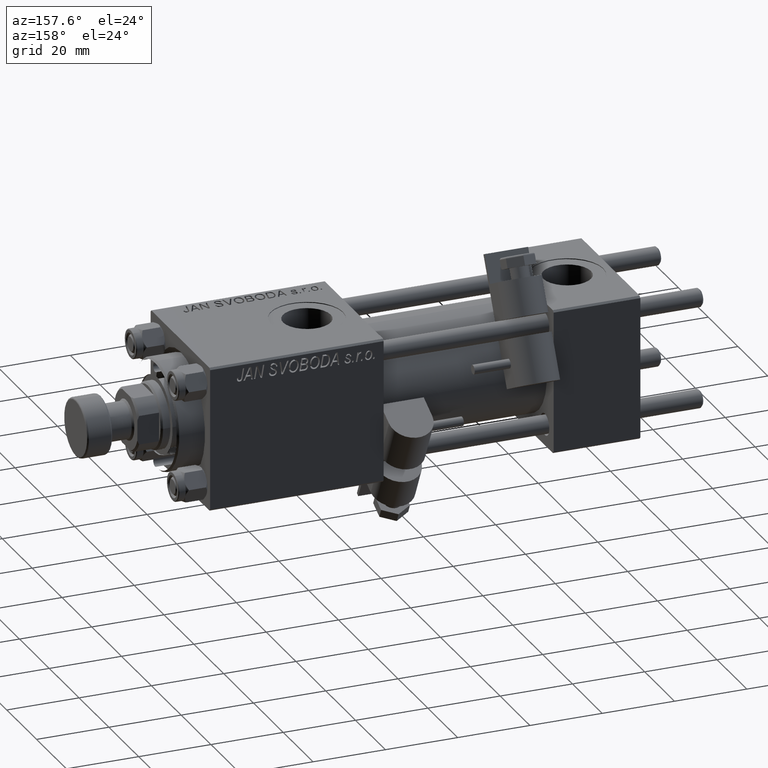
[diagram: clean part render]
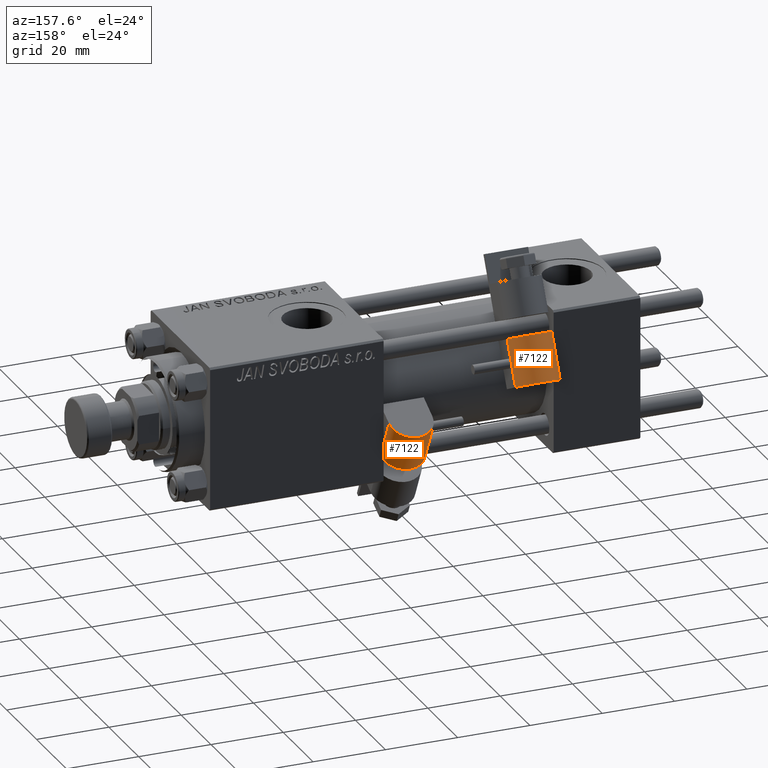
[diagram: same view with one multi-face feature highlighted, each face labeled with its STEP entity id]
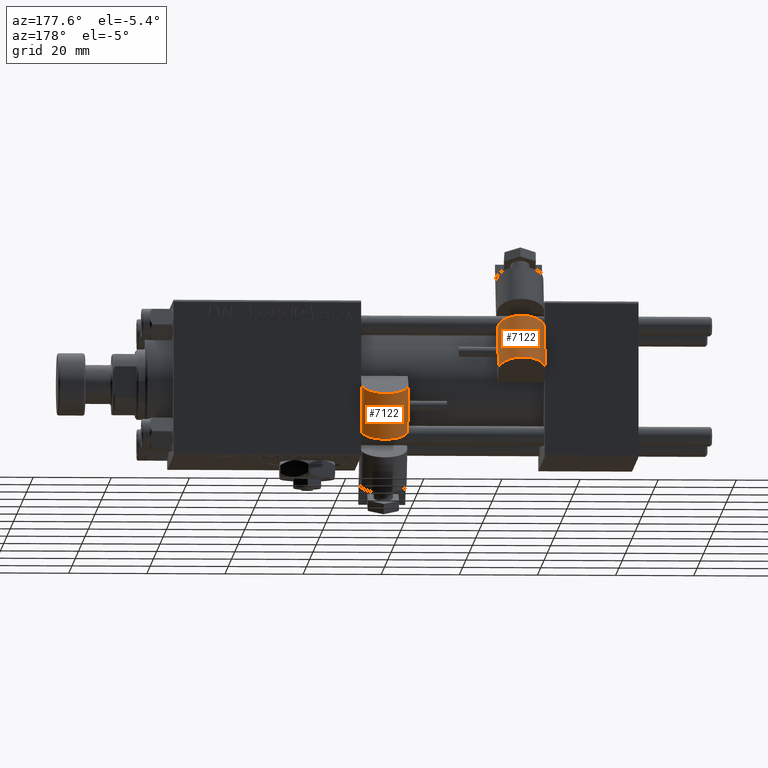
[diagram: same view with one multi-face feature highlighted, each face labeled with its STEP entity id]
A machine part, auxiliary view. The highlighted faces form ONE feature: a constant-radius fillet chain: 2 tangent blend faces with common blend radius 6 mm. The faces share edges in the B-rep.
A second angle (auxiliary view) of the same feature is appended — it is thin or edge-on in the first view.
Their STEP definitions:
[1] entity #7122 (Cylinder):
#1017 = LINE ( 'NONE', #21126, #14032 ) ;
#2160 = VERTEX_POINT ( 'NONE', #48704 ) ;
#2633 = AXIS2_PLACEMENT_3D ( 'NONE', #19380, #35778, #47574 ) ;
#4251 = ORIENTED_EDGE ( 'NONE', *, *, #19840, .F. ) ;
#5121 = DIRECTION ( 'NONE',  ( 0.000000000000000000, 0.000000000000000000, -1.000000000000000000 ) ) ;
#7122 = ADVANCED_FACE ( 'NONE', ( #47852 ), #26897, .T. ) ;
#7156 = DIRECTION ( 'NONE',  ( 1.000000000000000000, 0.000000000000000000, 0.000000000000000000 ) ) ;
#10395 = AXIS2_PLACEMENT_3D ( 'NONE', #14663, #7156, #32089 ) ;
#11949 = EDGE_CURVE ( 'NONE', #37195, #42929, #12129, .T. ) ;
#12129 = CIRCLE ( 'NONE', #10395, 6.000000000000002665 ) ;
#12811 = LINE ( 'NONE', #25141, #45836 ) ;
#14032 = VECTOR ( 'NONE', #17364, 1000.000000000000000 ) ;
#14398 = CARTESIAN_POINT ( 'NONE',  ( 27.24000000000000199, 6.499999999999999112, 6.000000000000006217 ) ) ;
#14663 = CARTESIAN_POINT ( 'NONE',  ( 14.74000000000000021, 6.500000000000000000, 2.255140518769849223E-14 ) ) ;
#16651 = DIRECTION ( 'NONE',  ( 1.000000000000000000, 0.000000000000000000, 0.000000000000000000 ) ) ;
#17356 = DIRECTION ( 'NONE',  ( -1.000000000000000000, -0.000000000000000000, -0.000000000000000000 ) ) ;
#17364 = DIRECTION ( 'NONE',  ( -1.000000000000000000, -0.000000000000000000, -0.000000000000000000 ) ) ;
#19380 = CARTESIAN_POINT ( 'NONE',  ( 27.24000000000000199, 6.500000000000000000, 2.255140518769849223E-14 ) ) ;
#19840 = EDGE_CURVE ( 'NONE', #21792, #42929, #12811, .T. ) ;
#20796 = EDGE_CURVE ( 'NONE', #2160, #37195, #1017, .T. ) ;
#21126 = CARTESIAN_POINT ( 'NONE',  ( 27.24000000000000199, 6.500000000000000000, -5.999999999999980460 ) ) ;
#21792 = VERTEX_POINT ( 'NONE', #14398 ) ;
#21836 = ORIENTED_EDGE ( 'NONE', *, *, #11949, .T. ) ;
#21983 = CARTESIAN_POINT ( 'NONE',  ( 27.24000000000000199, 6.500000000000000000, 2.255140518769849223E-14 ) ) ;
#25141 = CARTESIAN_POINT ( 'NONE',  ( 27.24000000000000199, 6.499999999999999112, 6.000000000000006217 ) ) ;
#26897 = CYLINDRICAL_SURFACE ( 'NONE', #2633, 6.000000000000002665 ) ;
#27645 = EDGE_CURVE ( 'NONE', #2160, #21792, #36516, .T. ) ;
#27888 = CARTESIAN_POINT ( 'NONE',  ( 14.74000000000000021, 6.500000000000000000, -5.999999999999980460 ) ) ;
#28328 = ORIENTED_EDGE ( 'NONE', *, *, #20796, .T. ) ;
#32089 = DIRECTION ( 'NONE',  ( 0.000000000000000000, 0.000000000000000000, -1.000000000000000000 ) ) ;
#32806 = EDGE_LOOP ( 'NONE', ( #21836, #4251, #38772, #28328 ) ) ;
#35778 = DIRECTION ( 'NONE',  ( -1.000000000000000000, -0.000000000000000000, -0.000000000000000000 ) ) ;
#36516 = CIRCLE ( 'NONE', #37404, 6.000000000000002665 ) ;
#37195 = VERTEX_POINT ( 'NONE', #27888 ) ;
#37404 = AXIS2_PLACEMENT_3D ( 'NONE', #21983, #16651, #5121 ) ;
#38772 = ORIENTED_EDGE ( 'NONE', *, *, #27645, .F. ) ;
#42929 = VERTEX_POINT ( 'NONE', #52296 ) ;
#45836 = VECTOR ( 'NONE', #17356, 1000.000000000000000 ) ;
#47574 = DIRECTION ( 'NONE',  ( 0.000000000000000000, 0.000000000000000000, 1.000000000000000000 ) ) ;
#47852 = FACE_OUTER_BOUND ( 'NONE', #32806, .T. ) ;
#48704 = CARTESIAN_POINT ( 'NONE',  ( 27.24000000000000199, 6.500000000000000000, -5.999999999999980460 ) ) ;
#52296 = CARTESIAN_POINT ( 'NONE',  ( 14.74000000000000021, 6.499999999999999112, 6.000000000000006217 ) ) ;
[2] entity #7122 (Cylinder):
#1017 = LINE ( 'NONE', #21126, #14032 ) ;
#2160 = VERTEX_POINT ( 'NONE', #48704 ) ;
#2633 = AXIS2_PLACEMENT_3D ( 'NONE', #19380, #35778, #47574 ) ;
#4251 = ORIENTED_EDGE ( 'NONE', *, *, #19840, .F. ) ;
#5121 = DIRECTION ( 'NONE',  ( 0.000000000000000000, 0.000000000000000000, -1.000000000000000000 ) ) ;
#7122 = ADVANCED_FACE ( 'NONE', ( #47852 ), #26897, .T. ) ;
#7156 = DIRECTION ( 'NONE',  ( 1.000000000000000000, 0.000000000000000000, 0.000000000000000000 ) ) ;
#10395 = AXIS2_PLACEMENT_3D ( 'NONE', #14663, #7156, #32089 ) ;
#11949 = EDGE_CURVE ( 'NONE', #37195, #42929, #12129, .T. ) ;
#12129 = CIRCLE ( 'NONE', #10395, 6.000000000000002665 ) ;
#12811 = LINE ( 'NONE', #25141, #45836 ) ;
#14032 = VECTOR ( 'NONE', #17364, 1000.000000000000000 ) ;
#14398 = CARTESIAN_POINT ( 'NONE',  ( 27.24000000000000199, 6.499999999999999112, 6.000000000000006217 ) ) ;
#14663 = CARTESIAN_POINT ( 'NONE',  ( 14.74000000000000021, 6.500000000000000000, 2.255140518769849223E-14 ) ) ;
#16651 = DIRECTION ( 'NONE',  ( 1.000000000000000000, 0.000000000000000000, 0.000000000000000000 ) ) ;
#17356 = DIRECTION ( 'NONE',  ( -1.000000000000000000, -0.000000000000000000, -0.000000000000000000 ) ) ;
#17364 = DIRECTION ( 'NONE',  ( -1.000000000000000000, -0.000000000000000000, -0.000000000000000000 ) ) ;
#19380 = CARTESIAN_POINT ( 'NONE',  ( 27.24000000000000199, 6.500000000000000000, 2.255140518769849223E-14 ) ) ;
#19840 = EDGE_CURVE ( 'NONE', #21792, #42929, #12811, .T. ) ;
#20796 = EDGE_CURVE ( 'NONE', #2160, #37195, #1017, .T. ) ;
#21126 = CARTESIAN_POINT ( 'NONE',  ( 27.24000000000000199, 6.500000000000000000, -5.999999999999980460 ) ) ;
#21792 = VERTEX_POINT ( 'NONE', #14398 ) ;
#21836 = ORIENTED_EDGE ( 'NONE', *, *, #11949, .T. ) ;
#21983 = CARTESIAN_POINT ( 'NONE',  ( 27.24000000000000199, 6.500000000000000000, 2.255140518769849223E-14 ) ) ;
#25141 = CARTESIAN_POINT ( 'NONE',  ( 27.24000000000000199, 6.499999999999999112, 6.000000000000006217 ) ) ;
#26897 = CYLINDRICAL_SURFACE ( 'NONE', #2633, 6.000000000000002665 ) ;
#27645 = EDGE_CURVE ( 'NONE', #2160, #21792, #36516, .T. ) ;
#27888 = CARTESIAN_POINT ( 'NONE',  ( 14.74000000000000021, 6.500000000000000000, -5.999999999999980460 ) ) ;
#28328 = ORIENTED_EDGE ( 'NONE', *, *, #20796, .T. ) ;
#32089 = DIRECTION ( 'NONE',  ( 0.000000000000000000, 0.000000000000000000, -1.000000000000000000 ) ) ;
#32806 = EDGE_LOOP ( 'NONE', ( #21836, #4251, #38772, #28328 ) ) ;
#35778 = DIRECTION ( 'NONE',  ( -1.000000000000000000, -0.000000000000000000, -0.000000000000000000 ) ) ;
#36516 = CIRCLE ( 'NONE', #37404, 6.000000000000002665 ) ;
#37195 = VERTEX_POINT ( 'NONE', #27888 ) ;
#37404 = AXIS2_PLACEMENT_3D ( 'NONE', #21983, #16651, #5121 ) ;
#38772 = ORIENTED_EDGE ( 'NONE', *, *, #27645, .F. ) ;
#42929 = VERTEX_POINT ( 'NONE', #52296 ) ;
#45836 = VECTOR ( 'NONE', #17356, 1000.000000000000000 ) ;
#47574 = DIRECTION ( 'NONE',  ( 0.000000000000000000, 0.000000000000000000, 1.000000000000000000 ) ) ;
#47852 = FACE_OUTER_BOUND ( 'NONE', #32806, .T. ) ;
#48704 = CARTESIAN_POINT ( 'NONE',  ( 27.24000000000000199, 6.500000000000000000, -5.999999999999980460 ) ) ;
#52296 = CARTESIAN_POINT ( 'NONE',  ( 14.74000000000000021, 6.499999999999999112, 6.000000000000006217 ) ) ;